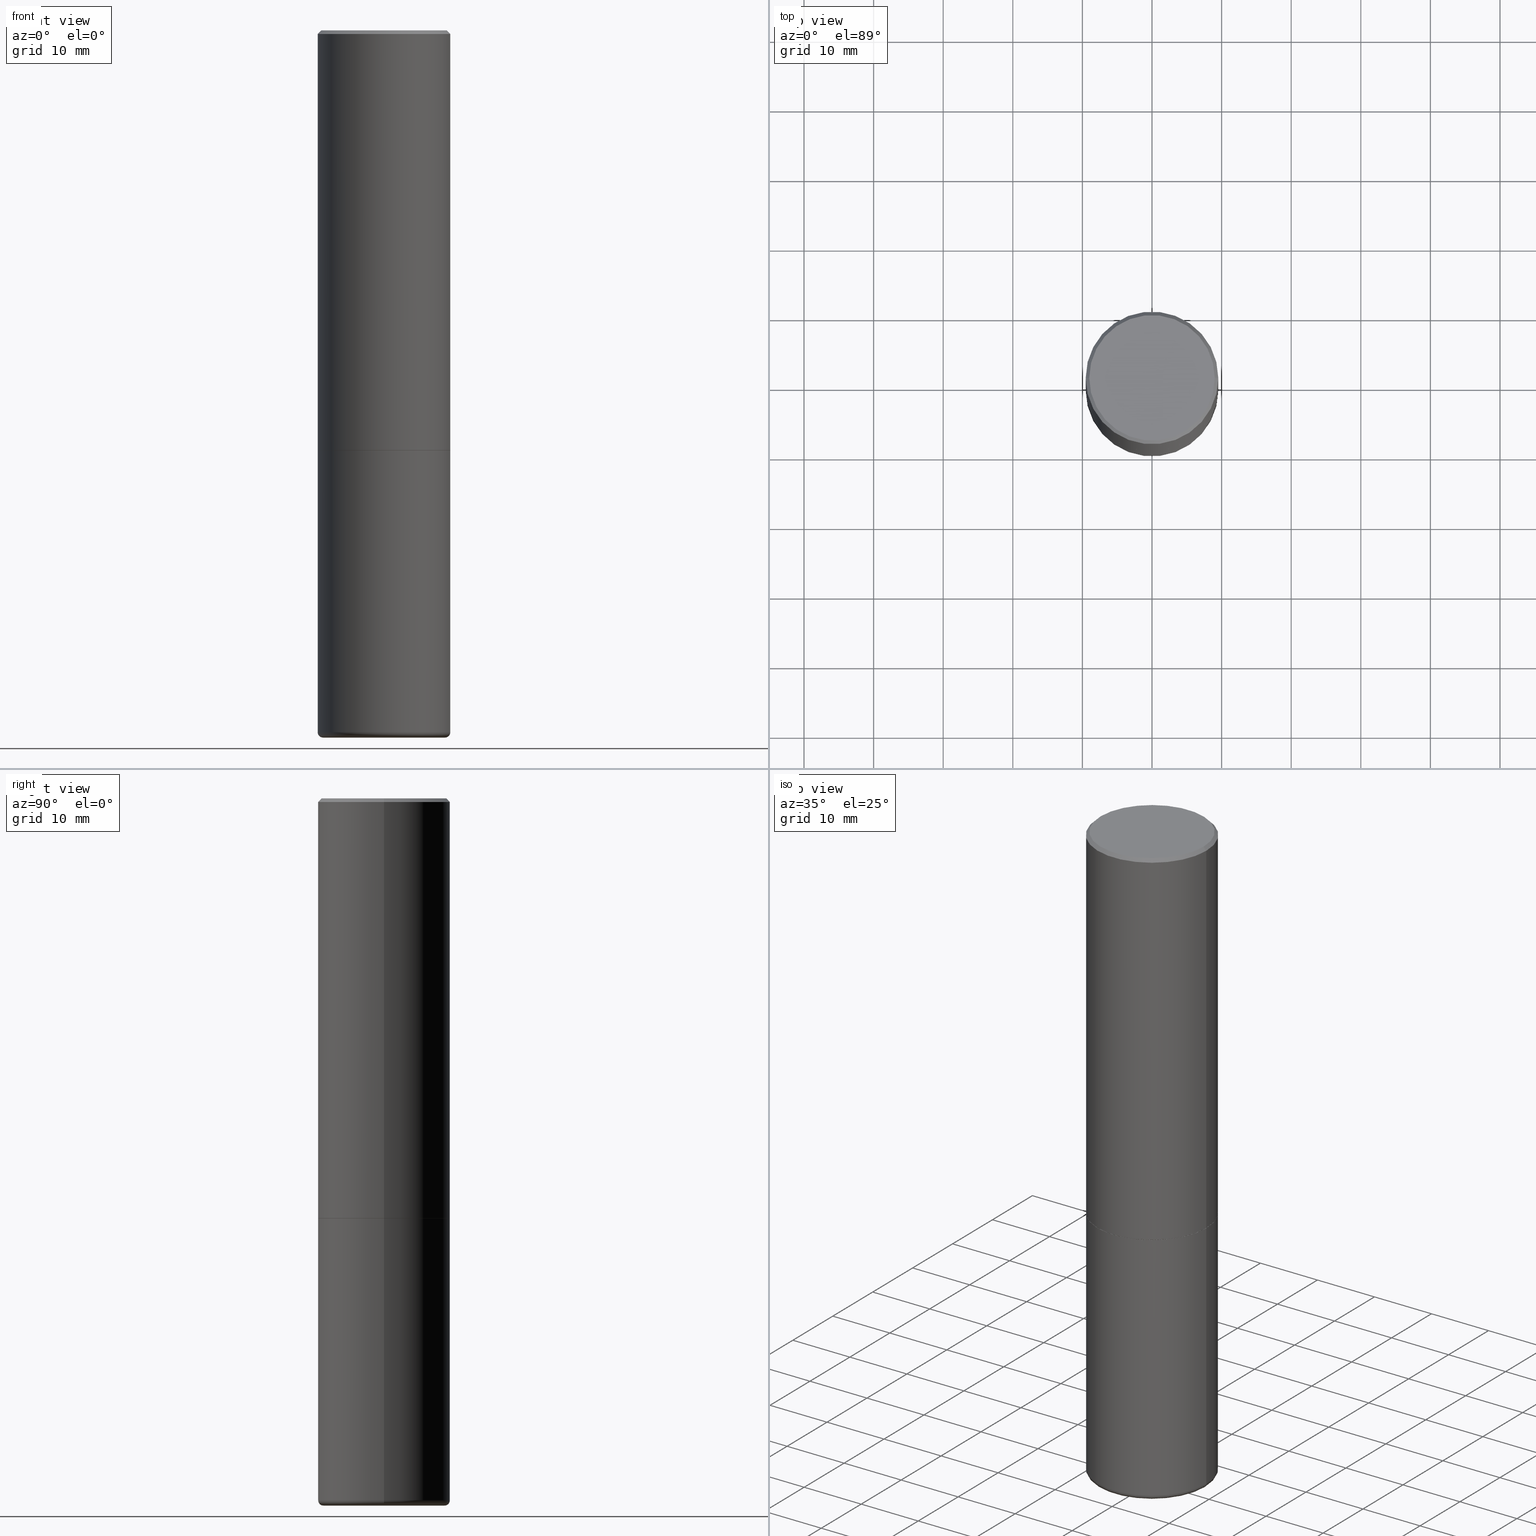
[diagram: canonical four-view strip — front | top / right | iso, engineering-drawing reading convention]
A machine part, canonical four-view strip (front | top / right | iso — engineering-drawing reading convention). The complete STEP part file that produces these views, byte-faithful:
ISO-10303-21;
HEADER;
FILE_DESCRIPTION (( 'STEP AP203' ),
    '1' );
FILE_NAME ('34785.STEP',
    '2022-11-02T20:17:08',
    ( '' ),
    ( '' ),
    'SwSTEP 2.0',
    'SolidWorks 2022',
    '' );
FILE_SCHEMA (( 'CONFIG_CONTROL_DESIGN' ));
ENDSEC;

DATA;
#1 = CARTESIAN_POINT ( 'NONE',  ( 9.781875224740545266E-29, -1.396592535537258075E-14, -3.999999999999999556 ) ) ;
#2 = CALENDAR_DATE ( 2022, 2, 11 ) ;
#3 = EDGE_CURVE ( 'NONE', #373, #296, #477, .T. ) ;
#4 = DIRECTION ( 'NONE',  ( -2.445468806185136597E-29, 3.491481338843145583E-15, 1.000000000000000000 ) ) ;
#5 = DIRECTION ( 'NONE',  ( 1.000000000000000000, -6.982962677686267499E-15, 0.000000000000000000 ) ) ;
#6 = FACE_OUTER_BOUND ( 'NONE', #401, .T. ) ;
#7 = VECTOR ( 'NONE', #224, 39.37007874015748854 ) ;
#8 = CARTESIAN_POINT ( 'NONE',  ( 9.781021626775434250E-29, -1.396470664370530441E-14, -3.999650947105539256 ) ) ;
#9 = ORIENTED_EDGE ( 'NONE', *, *, #72, .T. ) ;
#10 = DIRECTION ( 'NONE',  ( 1.000000000000000000, -6.982962677686265133E-15, 0.000000000000000000 ) ) ;
#11 = ORIENTED_EDGE ( 'NONE', *, *, #45, .F. ) ;
#12 = DIRECTION ( 'NONE',  ( 2.438088387897960049E-29, -3.491481338843145188E-15, -1.000000000000000000 ) ) ;
#13 = CONICAL_SURFACE ( 'NONE', #273, 0.3047407039350492619, 1.535889741755010807 ) ;
#14 = ORIENTED_EDGE ( 'NONE', *, *, #223, .F. ) ;
#15 = AXIS2_PLACEMENT_3D ( 'NONE', #164, #252, #404 ) ;
#16 = CARTESIAN_POINT ( 'NONE',  ( 0.3749999999999992784, -2.642516375941182506E-15, -0.02000000000000018430 ) ) ;
#17 = ORIENTED_EDGE ( 'NONE', *, *, #47, .F. ) ;
#18 = LINE ( 'NONE', #466, #221 ) ;
#19 = ORIENTED_EDGE ( 'NONE', *, *, #393, .T. ) ;
#20 = ADVANCED_BREP_SHAPE_REPRESENTATION ( '34785', ( #176, #343, #487 ), #399 ) ;
#21 =( NAMED_UNIT ( * ) SI_UNIT ( $, .STERADIAN. ) SOLID_ANGLE_UNIT ( ) );
#22 = ORIENTED_EDGE ( 'NONE', *, *, #170, .T. ) ;
#23 = CC_DESIGN_APPROVAL ( #395, ( #130 ) ) ;
#24 = APPROVAL_STATUS ( 'not_yet_approved' ) ;
#25 = CARTESIAN_POINT ( 'NONE',  ( -0.3749999999999993339, -8.412191282553172474E-15, -3.970001142308074993 ) ) ;
#26 = VERTEX_POINT ( 'NONE', #25 ) ;
#27 = CYLINDRICAL_SURFACE ( 'NONE', #308, 0.3749999999999993894 ) ;
#28 = CARTESIAN_POINT ( 'NONE',  ( 0.3749999999999993894, -2.618611004132345678E-15, 1.828566290923473120E-29 ) ) ;
#29 = CONICAL_SURFACE ( 'NONE', #307, 0.3739999999999995550, 0.7853981633974141952 ) ;
#30 = DATE_AND_TIME ( #219, #457 ) ;
#31 = DIRECTION ( 'NONE',  ( -2.445468806185136877E-29, 3.491481338843145188E-15, 1.000000000000000000 ) ) ;
#32 = CARTESIAN_POINT ( 'NONE',  ( 5.807988414689699417E-29, -8.292268179752470118E-15, -2.375000000000000000 ) ) ;
#33 = PERSON_AND_ORGANIZATION_ROLE ( 'creator' ) ;
#34 = CARTESIAN_POINT ( 'NONE',  ( -0.3749999999999993894, 2.664535259100371358E-15, -1.844600658845586515E-29 ) ) ;
#35 = CIRCLE ( 'NONE', #74, 0.3749999999999992784 ) ;
#36 = DIRECTION ( 'NONE',  ( -1.000000000000000000, 6.982962677686267499E-15, 0.000000000000000000 ) ) ;
#37 = APPROVAL_DATE_TIME ( #75, #395 ) ;
#38 = DIRECTION ( 'NONE',  ( -1.000000000000000000, 6.982962677686265133E-15, 0.000000000000000000 ) ) ;
#39 = CC_DESIGN_PERSON_AND_ORGANIZATION_ASSIGNMENT ( #300, #33, ( #130 ) ) ;
#40 = LINE ( 'NONE', #376, #388 ) ;
#41 = DIRECTION ( 'NONE',  ( 1.000000000000000000, -6.982962677686265133E-15, 0.000000000000000000 ) ) ;
#42 = AXIS2_PLACEMENT_3D ( 'NONE', #471, #12, #355 ) ;
#43 = CC_DESIGN_APPROVAL ( #360, ( #73 ) ) ;
#44 = CARTESIAN_POINT ( 'NONE',  ( 0.3549999999999990941, -2.538996582575035132E-15, 8.537024980218368550E-18 ) ) ;
#45 = EDGE_CURVE ( 'NONE', #26, #126, #104, .T. ) ;
#46 = EDGE_LOOP ( 'NONE', ( #158, #288, #123, #467 ) ) ;
#47 = EDGE_CURVE ( 'NONE', #126, #373, #220, .T. ) ;
#48 = DIRECTION ( 'NONE',  ( 1.000000000000000000, -6.982962677686265133E-15, 0.000000000000000000 ) ) ;
#49 = ORIENTED_EDGE ( 'NONE', *, *, #411, .T. ) ;
#50 = CARTESIAN_POINT ( 'NONE',  ( 0.000000000000000000, 0.000000000000000000, 0.000000000000000000 ) ) ;
#51 = AXIS2_PLACEMENT_3D ( 'NONE', #146, #259, #465 ) ;
#52 = EDGE_LOOP ( 'NONE', ( #434, #371, #328, #17 ) ) ;
#53 = CARTESIAN_POINT ( 'NONE',  ( 5.807988414689699417E-29, -8.292268179752470118E-15, -2.375000000000000000 ) ) ;
#54 = ORIENTED_EDGE ( 'NONE', *, *, #318, .T. ) ;
#55 = DIRECTION ( 'NONE',  ( -2.445468806185136597E-29, 3.491481338843145583E-15, 1.000000000000000000 ) ) ;
#56 = ORIENTED_EDGE ( 'NONE', *, *, #230, .F. ) ;
#57 = DIRECTION ( 'NONE',  ( 0.000000000000000000, 0.000000000000000000, 1.000000000000000000 ) ) ;
#58 = DIRECTION ( 'NONE',  ( 2.445468806185136597E-29, -3.491481338843145583E-15, -1.000000000000000000 ) ) ;
#59 = AXIS2_PLACEMENT_3D ( 'NONE', #174, #409, #100 ) ;
#60 = EDGE_CURVE ( 'NONE', #90, #26, #80, .T. ) ;
#61 =( NAMED_UNIT ( * ) PLANE_ANGLE_UNIT ( ) SI_UNIT ( $, .RADIAN. ) );
#62 = CARTESIAN_POINT ( 'NONE',  ( 9.781021626775434250E-29, -1.396470664370530441E-14, -3.999650947105539256 ) ) ;
#63 = PERSON_AND_ORGANIZATION ( #310, #325 ) ;
#64 = CARTESIAN_POINT ( 'NONE',  ( -0.3447382039350492255, -1.135653136718824702E-14, -3.999999999999999556 ) ) ;
#65 = COORDINATED_UNIVERSAL_TIME_OFFSET ( 5, 0, .BEHIND. ) ;
#66 = DIRECTION ( 'NONE',  ( -2.445468806185136597E-29, 3.491481338843145583E-15, 1.000000000000000000 ) ) ;
#67 = AXIS2_PLACEMENT_3D ( 'NONE', #313, #234, #385 ) ;
#68 = CARTESIAN_POINT ( 'NONE',  ( 0.3749999999999993339, -1.647979590768696204E-14, -3.970001142308074993 ) ) ;
#69 = CARTESIAN_POINT ( 'NONE',  ( 0.3447382039350492255, -1.637321936702362776E-14, -3.999999999999999556 ) ) ;
#70 = COORDINATED_UNIVERSAL_TIME_OFFSET ( 5, 0, .BEHIND. ) ;
#71 = LINE ( 'NONE', #144, #266 ) ;
#72 = EDGE_CURVE ( 'NONE', #207, #209, #213, .T. ) ;
#73 = PRODUCT_DEFINITION ( 'UNKNOWN', '', #130, #346 ) ;
#74 = AXIS2_PLACEMENT_3D ( 'NONE', #305, #297, #5 ) ;
#75 = DATE_AND_TIME ( #460, #120 ) ;
#76 = CARTESIAN_POINT ( 'NONE',  ( 5.807988414689699417E-29, -8.292268179752470118E-15, -2.375000000000000000 ) ) ;
#77 = PERSON_AND_ORGANIZATION_ROLE ( 'design_supplier' ) ;
#78 = CARTESIAN_POINT ( 'NONE',  ( 0.000000000000000000, 0.000000000000000000, 0.000000000000000000 ) ) ;
#79 = CARTESIAN_POINT ( 'NONE',  ( -0.3749999999999992784, 2.548781377355481985E-15, -0.02000000000000018430 ) ) ;
#80 = CIRCLE ( 'NONE', #59, 0.02999999999999940561 ) ;
#81 = CARTESIAN_POINT ( 'NONE',  ( 0.000000000000000000, 0.000000000000000000, 0.000000000000000000 ) ) ;
#82 = AXIS2_PLACEMENT_3D ( 'NONE', #78, #463, #426 ) ;
#83 = ORIENTED_EDGE ( 'NONE', *, *, #393, .F. ) ;
#84 = DIRECTION ( 'NONE',  ( 0.9993908270190957621, -6.978169709227539121E-15, -0.03489949670250019204 ) ) ;
#85 = EDGE_LOOP ( 'NONE', ( #330, #260, #117, #11 ) ) ;
#86 = DIRECTION ( 'NONE',  ( 1.000000000000000000, -6.982962677686265133E-15, 4.876231632512000515E-29 ) ) ;
#87 = ORIENTED_EDGE ( 'NONE', *, *, #106, .F. ) ;
#88 = FACE_OUTER_BOUND ( 'NONE', #85, .T. ) ;
#89 = VECTOR ( 'NONE', #353, 39.37007874015748854 ) ;
#90 = VERTEX_POINT ( 'NONE', #64 ) ;
#91 = APPROVAL_PERSON_ORGANIZATION ( #374, #141, #381 ) ;
#92 = ORIENTED_EDGE ( 'NONE', *, *, #427, .T. ) ;
#93 = ORIENTED_EDGE ( 'NONE', *, *, #452, .F. ) ;
#94 = DIRECTION ( 'NONE',  ( -6.982962677686266711E-15, -1.000000000000000000, 3.491481338843145583E-15 ) ) ;
#95 = DIRECTION ( 'NONE',  ( 1.000000000000000000, -6.982962677686269866E-15, 0.000000000000000000 ) ) ;
#96 = CIRCLE ( 'NONE', #486, 0.3447382039350492255 ) ;
#97 = CC_DESIGN_DATE_AND_TIME_ASSIGNMENT ( #183, #263, ( #98 ) ) ;
#98 = SECURITY_CLASSIFICATION ( '', '', #109 ) ;
#99 = APPLICATION_PROTOCOL_DEFINITION ( 'international standard', 'config_control_design', 1994, #152 ) ;
#100 = DIRECTION ( 'NONE',  ( -1.000000000000000000, 7.105427357601001859E-15, 0.000000000000000000 ) ) ;
#101 = APPLICATION_PROTOCOL_DEFINITION ( 'international standard', 'config_control_design', 1994, #423 ) ;
#102 = CARTESIAN_POINT ( 'NONE',  ( 5.807988414689699417E-29, -8.292268179752470118E-15, -2.375000000000000000 ) ) ;
#103 = DIRECTION ( 'NONE',  ( 2.445468806185136597E-29, -3.491481338843145583E-15, -1.000000000000000000 ) ) ;
#104 = CIRCLE ( 'NONE', #357, 0.3749999999999993339 ) ;
#105 = APPROVAL_PERSON_ORGANIZATION ( #334, #395, #443 ) ;
#106 = EDGE_CURVE ( 'NONE', #319, #363, #246, .T. ) ;
#107 = EDGE_CURVE ( 'NONE', #197, #363, #250, .T. ) ;
#108 = DIRECTION ( 'NONE',  ( -2.445468806185136597E-29, 3.491481338843145583E-15, 1.000000000000000000 ) ) ;
#109 = SECURITY_CLASSIFICATION_LEVEL ( 'unclassified' ) ;
#110 = FACE_OUTER_BOUND ( 'NONE', #356, .T. ) ;
#111 = ADVANCED_FACE ( 'NONE', ( #182 ), #365, .F. ) ;
#112 = DIRECTION ( 'NONE',  ( 2.445468806185136597E-29, -3.491481338843145583E-15, -1.000000000000000000 ) ) ;
#113 = CIRCLE ( 'NONE', #283, 0.3749999999999992784 ) ;
#114 = DIRECTION ( 'NONE',  ( 1.000000000000000000, -6.982962677686268288E-15, 0.000000000000000000 ) ) ;
#115 = CARTESIAN_POINT ( 'NONE',  ( 9.781875224740545266E-29, -1.396592535537258075E-14, -3.999999999999999556 ) ) ;
#116 = PLANE ( 'NONE',  #42 ) ;
#117 = ORIENTED_EDGE ( 'NONE', *, *, #482, .T. ) ;
#118 = CIRCLE ( 'NONE', #171, 0.3047407039350492619 ) ;
#119 = CYLINDRICAL_SURFACE ( 'NONE', #323, 0.3749999999999993894 ) ;
#120 = LOCAL_TIME ( 16, 17, 8.000000000000000000, #424 ) ;
#121 = VERTEX_POINT ( 'NONE', #140 ) ;
#122 = DIRECTION ( 'NONE',  ( -2.445468806185136597E-29, 3.491481338843145583E-15, 1.000000000000000000 ) ) ;
#123 = ORIENTED_EDGE ( 'NONE', *, *, #483, .F. ) ;
#124 = ADVANCED_FACE ( 'NONE', ( #335 ), #421, .F. ) ;
#125 = DIRECTION ( 'NONE',  ( -2.445468806185136597E-29, 3.491481338843145583E-15, 1.000000000000000000 ) ) ;
#126 = VERTEX_POINT ( 'NONE', #68 ) ;
#127 = CARTESIAN_POINT ( 'NONE',  ( -0.3047407039350492619, -1.183671368175501508E-14, -3.999650947105539256 ) ) ;
#128 = AXIS2_PLACEMENT_3D ( 'NONE', #196, #279, #41 ) ;
#129 = ORIENTED_EDGE ( 'NONE', *, *, #254, .T. ) ;
#130 = PRODUCT_DEFINITION_FORMATION_WITH_SPECIFIED_SOURCE ( 'ANY', '', #383, .NOT_KNOWN. ) ;
#131 = FACE_OUTER_BOUND ( 'NONE', #459, .T. ) ;
#132 = DIRECTION ( 'NONE',  ( -2.445468806185136597E-29, 3.491481338843145583E-15, 1.000000000000000000 ) ) ;
#133 = CC_DESIGN_PERSON_AND_ORGANIZATION_ASSIGNMENT ( #402, #139, ( #73 ) ) ;
#134 = EDGE_LOOP ( 'NONE', ( #447, #280, #145, #253 ) ) ;
#135 = PERSON_AND_ORGANIZATION_ROLE ( 'design_owner' ) ;
#136 = DIRECTION ( 'NONE',  ( -2.445468806185136877E-29, 3.491481338843145188E-15, 1.000000000000000000 ) ) ;
#137 = VECTOR ( 'NONE', #410, 39.37007874015748854 ) ;
#138 = AXIS2_PLACEMENT_3D ( 'NONE', #8, #400, #10 ) ;
#139 = PERSON_AND_ORGANIZATION_ROLE ( 'creator' ) ;
#140 = CARTESIAN_POINT ( 'NONE',  ( 9.753116872605322365E-29, -1.393024421333557425E-14, -3.989009167228670716 ) ) ;
#141 = APPROVAL ( #190, 'UNSPECIFIED' ) ;
#142 = APPROVAL_STATUS ( 'not_yet_approved' ) ;
#143 = ORIENTED_EDGE ( 'NONE', *, *, #223, .T. ) ;
#144 = CARTESIAN_POINT ( 'NONE',  ( -0.3739999999999995550, -5.634838348009698584E-15, -2.375000000000000000 ) ) ;
#145 = ORIENTED_EDGE ( 'NONE', *, *, #178, .F. ) ;
#146 = CARTESIAN_POINT ( 'NONE',  ( 9.781875224740545266E-29, -1.396592535537258075E-14, -3.999999999999999556 ) ) ;
#147 = UNCERTAINTY_MEASURE_WITH_UNIT (LENGTH_MEASURE( 1.000000000000000082E-05 ), #175, 'distance_accuracy_value', 'NONE');
#148 = DIRECTION ( 'NONE',  ( -0.7071067811865232589, 7.493145998870265808E-15, 0.7071067811865715536 ) ) ;
#149 = COORDINATED_UNIVERSAL_TIME_OFFSET ( 5, 0, .BEHIND. ) ;
#150 = CARTESIAN_POINT ( 'NONE',  ( 0.3749999999999995559, -1.090738770254597397E-14, -2.373999999999999666 ) ) ;
#151 = VECTOR ( 'NONE', #342, 39.37007874015748143 ) ;
#152 = APPLICATION_CONTEXT ( 'configuration controlled 3d designs of mechanical parts and assemblies' ) ;
#153 = DIRECTION ( 'NONE',  ( 2.445468806185136597E-29, -3.491481338843145583E-15, -1.000000000000000000 ) ) ;
#154 = EDGE_CURVE ( 'NONE', #319, #354, #332, .T. ) ;
#155 = CARTESIAN_POINT ( 'NONE',  ( 9.781021626775434250E-29, -1.396470664370530441E-14, -3.999650947105539256 ) ) ;
#156 = ORIENTED_EDGE ( 'NONE', *, *, #254, .F. ) ;
#157 = FACE_OUTER_BOUND ( 'NONE', #405, .T. ) ;
#158 = ORIENTED_EDGE ( 'NONE', *, *, #452, .T. ) ;
#159 = ADVANCED_FACE ( 'NONE', ( #131 ), #372, .T. ) ;
#160 = AXIS2_PLACEMENT_3D ( 'NONE', #264, #232, #416 ) ;
#161 = CARTESIAN_POINT ( 'NONE',  ( -0.3749999999999995559, -8.412191282553170896E-15, -2.375000000000000000 ) ) ;
#162 = AXIS2_PLACEMENT_3D ( 'NONE', #480, #94, #408 ) ;
#163 = ORIENTED_EDGE ( 'NONE', *, *, #377, .T. ) ;
#164 = CARTESIAN_POINT ( 'NONE',  ( 9.708513954033757613E-29, -1.386118490355461518E-14, -3.970001142308074993 ) ) ;
#165 = ORIENTED_EDGE ( 'NONE', *, *, #45, .T. ) ;
#166 = DIRECTION ( 'NONE',  ( -2.445468806185136597E-29, 3.491481338843145583E-15, 1.000000000000000000 ) ) ;
#167 = VERTEX_POINT ( 'NONE', #446 ) ;
#168 = CARTESIAN_POINT ( 'NONE',  ( 5.807988414689699417E-29, -8.292268179752470118E-15, -2.375000000000000000 ) ) ;
#169 = VECTOR ( 'NONE', #136, 39.37007874015748143 ) ;
#170 = EDGE_CURVE ( 'NONE', #209, #90, #96, .T. ) ;
#171 = AXIS2_PLACEMENT_3D ( 'NONE', #155, #125, #48 ) ;
#172 = DIRECTION ( 'NONE',  ( -2.445468806185136597E-29, 3.491481338843145583E-15, 1.000000000000000000 ) ) ;
#173 = DIRECTION ( 'NONE',  ( 1.000000000000000000, -6.982962677686268288E-15, 0.000000000000000000 ) ) ;
#174 = CARTESIAN_POINT ( 'NONE',  ( -0.3450000000000003064, -1.140981246518226815E-14, -3.970001142308074993 ) ) ;
#175 =( CONVERSION_BASED_UNIT ( 'INCH', #210 ) LENGTH_UNIT ( ) NAMED_UNIT ( #247 ) );
#176 = MANIFOLD_SOLID_BREP ( 'Body-Move/Copy2[1]', #440 ) ;
#177 = ORIENTED_EDGE ( 'NONE', *, *, #72, .F. ) ;
#178 = EDGE_CURVE ( 'NONE', #451, #363, #35, .T. ) ;
#179 = CARTESIAN_POINT ( 'NONE',  ( 9.708513954033757613E-29, -1.386118490355461518E-14, -3.970001142308074993 ) ) ;
#180 = CIRCLE ( 'NONE', #441, 0.3739999999999995550 ) ;
#181 = DATE_TIME_ROLE ( 'creation_date' ) ;
#182 = FACE_OUTER_BOUND ( 'NONE', #244, .T. ) ;
#183 = DATE_AND_TIME ( #2, #407 ) ;
#184 = FACE_OUTER_BOUND ( 'NONE', #46, .T. ) ;
#185 = CARTESIAN_POINT ( 'NONE',  ( 0.3739999999999995550, -1.090389622120713096E-14, -2.375000000000000000 ) ) ;
#186 = CIRCLE ( 'NONE', #160, 0.3749999999999993339 ) ;
#187 = APPROVAL_DATE_TIME ( #344, #141 ) ;
#188 = ADVANCED_FACE ( 'NONE', ( #490 ), #430, .F. ) ;
#189 = CARTESIAN_POINT ( 'NONE',  ( 4.890937612370317825E-31, -6.982962677686355704E-17, -0.02000000000000018430 ) ) ;
#190 = APPROVAL_STATUS ( 'not_yet_approved' ) ;
#191 = CARTESIAN_POINT ( 'NONE',  ( 5.807988414689699417E-29, -8.292268179752470118E-15, -2.375000000000000000 ) ) ;
#192 = CARTESIAN_POINT ( 'NONE',  ( 4.890937612370317825E-31, -6.982962677686355704E-17, -0.02000000000000018430 ) ) ;
#193 = ADVANCED_FACE ( 'NONE', ( #6 ), #13, .F. ) ;
#194 = VECTOR ( 'NONE', #436, 39.37007874015748143 ) ;
#195 = DIRECTION ( 'NONE',  ( 1.000000000000000000, -6.982962677686266711E-15, 4.876176775795936353E-29 ) ) ;
#196 = CARTESIAN_POINT ( 'NONE',  ( 5.805542945883513814E-29, -8.288776698413627111E-15, -2.373999999999999666 ) ) ;
#197 = VERTEX_POINT ( 'NONE', #309 ) ;
#198 = EDGE_CURVE ( 'NONE', #167, #197, #71, .T. ) ;
#199 = CC_DESIGN_PERSON_AND_ORGANIZATION_ASSIGNMENT ( #261, #231, ( #98 ) ) ;
#200 = DIRECTION ( 'NONE',  ( -2.445468806185136597E-29, 3.491481338843145583E-15, 1.000000000000000000 ) ) ;
#201 = ORIENTED_EDGE ( 'NONE', *, *, #107, .F. ) ;
#202 = AXIS2_PLACEMENT_3D ( 'NONE', #364, #172, #326 ) ;
#203 = DIRECTION ( 'NONE',  ( -2.445468806185136597E-29, 3.491481338843145583E-15, 1.000000000000000000 ) ) ;
#204 = CIRCLE ( 'NONE', #235, 0.3749999999999995559 ) ;
#205 = VERTEX_POINT ( 'NONE', #150 ) ;
#206 = LINE ( 'NONE', #428, #89 ) ;
#207 = VERTEX_POINT ( 'NONE', #461 ) ;
#208 =( LENGTH_UNIT ( ) NAMED_UNIT ( * ) SI_UNIT ( $, .METRE. ) );
#209 = VERTEX_POINT ( 'NONE', #69 ) ;
#210 = LENGTH_MEASURE_WITH_UNIT ( LENGTH_MEASURE( 0.02539999999999999897 ), #208 );
#211 = CONICAL_SURFACE ( 'NONE', #274, 0.3739999999999995550, 0.7853981633974141952 ) ;
#212 = ORIENTED_EDGE ( 'NONE', *, *, #178, .T. ) ;
#213 = LINE ( 'NONE', #479, #137 ) ;
#214 = EDGE_CURVE ( 'NONE', #90, #209, #380, .T. ) ;
#215 = EDGE_CURVE ( 'NONE', #476, #205, #379, .T. ) ;
#216 = APPROVAL_ROLE ( '' ) ;
#217 = ADVANCED_FACE ( 'NONE', ( #340 ), #269, .T. ) ;
#218 = EDGE_LOOP ( 'NONE', ( #352, #314 ) ) ;
#219 = CALENDAR_DATE ( 2022, 2, 11 ) ;
#220 = LINE ( 'NONE', #28, #169 ) ;
#221 = VECTOR ( 'NONE', #238, 39.37007874015748143 ) ;
#222 = FACE_OUTER_BOUND ( 'NONE', #239, .T. ) ;
#223 = EDGE_CURVE ( 'NONE', #121, #312, #40, .T. ) ;
#224 = DIRECTION ( 'NONE',  ( 0.7071067811865232589, -2.468850131082003836E-15, 0.7071067811865715536 ) ) ;
#225 = ORIENTED_EDGE ( 'NONE', *, *, #278, .F. ) ;
#226 = ADVANCED_FACE ( 'NONE', ( #110 ), #298, .T. ) ;
#227 = DIRECTION ( 'NONE',  ( -2.438088387897960049E-29, 3.491481338843145188E-15, 1.000000000000000000 ) ) ;
#228 = AXIS2_PLACEMENT_3D ( 'NONE', #50, #203, #359 ) ;
#229 = DIRECTION ( 'NONE',  ( 1.000000000000000000, -6.982962677686268288E-15, 0.000000000000000000 ) ) ;
#230 = EDGE_CURVE ( 'NONE', #126, #26, #186, .T. ) ;
#231 = PERSON_AND_ORGANIZATION_ROLE ( 'classification_officer' ) ;
#232 = DIRECTION ( 'NONE',  ( -2.445468806185136597E-29, 3.491481338843145583E-15, 1.000000000000000000 ) ) ;
#233 = EDGE_CURVE ( 'NONE', #26, #296, #418, .T. ) ;
#234 = DIRECTION ( 'NONE',  ( 2.445468806185136597E-29, -3.491481338843145583E-15, -1.000000000000000000 ) ) ;
#235 = AXIS2_PLACEMENT_3D ( 'NONE', #248, #132, #286 ) ;
#236 = DIRECTION ( 'NONE',  ( 1.000000000000000000, -6.982962677686268288E-15, 0.000000000000000000 ) ) ;
#237 = ORIENTED_EDGE ( 'NONE', *, *, #482, .F. ) ;
#238 = DIRECTION ( 'NONE',  ( -2.445468806185136877E-29, 3.491481338843145188E-15, 1.000000000000000000 ) ) ;
#239 = EDGE_LOOP ( 'NONE', ( #93, #225 ) ) ;
#240 = FACE_OUTER_BOUND ( 'NONE', #52, .T. ) ;
#241 = ORIENTED_EDGE ( 'NONE', *, *, #233, .F. ) ;
#242 = AXIS2_PLACEMENT_3D ( 'NONE', #32, #227, #375 ) ;
#243 = ORIENTED_EDGE ( 'NONE', *, *, #413, .F. ) ;
#244 = EDGE_LOOP ( 'NONE', ( #243, #143, #316 ) ) ;
#245 = PERSON_AND_ORGANIZATION ( #310, #325 ) ;
#246 = LINE ( 'NONE', #256, #339 ) ;
#247 = DIMENSIONAL_EXPONENTS ( 1.000000000000000000, 0.000000000000000000, 0.000000000000000000, 0.000000000000000000, 0.000000000000000000, 0.000000000000000000, 0.000000000000000000 ) ;
#248 = CARTESIAN_POINT ( 'NONE',  ( 5.805542945883513814E-29, -8.288776698413627111E-15, -2.373999999999999666 ) ) ;
#249 = AXIS2_PLACEMENT_3D ( 'NONE', #62, #58, #488 ) ;
#250 = LINE ( 'NONE', #454, #290 ) ;
#251 = ADVANCED_FACE ( 'NONE', ( #222 ), #384, .F. ) ;
#252 = DIRECTION ( 'NONE',  ( -2.445468806185136597E-29, 3.491481338843145583E-15, 1.000000000000000000 ) ) ;
#253 = ORIENTED_EDGE ( 'NONE', *, *, #318, .F. ) ;
#254 = EDGE_CURVE ( 'NONE', #363, #451, #113, .T. ) ;
#255 = COORDINATED_UNIVERSAL_TIME_OFFSET ( 5, 0, .BEHIND. ) ;
#256 = CARTESIAN_POINT ( 'NONE',  ( -0.3749999999999992784, 2.548781377355481985E-15, -0.02000000000000018430 ) ) ;
#257 = ORIENTED_EDGE ( 'NONE', *, *, #170, .F. ) ;
#258 = AXIS2_PLACEMENT_3D ( 'NONE', #268, #458, #338 ) ;
#259 = DIRECTION ( 'NONE',  ( -2.445468806185136597E-29, 3.491481338843145583E-15, 1.000000000000000000 ) ) ;
#260 = ORIENTED_EDGE ( 'NONE', *, *, #214, .T. ) ;
#261 = PERSON_AND_ORGANIZATION ( #310, #325 ) ;
#262 = DIRECTION ( 'NONE',  ( 2.445468806185136597E-29, -3.491481338843145583E-15, -1.000000000000000000 ) ) ;
#263 = DATE_TIME_ROLE ( 'classification_date' ) ;
#264 = CARTESIAN_POINT ( 'NONE',  ( 9.708513954033757613E-29, -1.386118490355461518E-14, -3.970001142308074993 ) ) ;
#265 = ADVANCED_FACE ( 'NONE', ( #184 ), #29, .T. ) ;
#266 = VECTOR ( 'NONE', #148, 39.37007874015748854 ) ;
#267 = ADVANCED_FACE ( 'NONE', ( #382 ), #211, .T. ) ;
#268 = CARTESIAN_POINT ( 'NONE',  ( 9.708513954033757613E-29, -1.386118490355461518E-14, -3.970001142308074993 ) ) ;
#269 = CYLINDRICAL_SURFACE ( 'NONE', #82, 0.3749999999999993894 ) ;
#270 = CARTESIAN_POINT ( 'NONE',  ( 5.807988414689699417E-29, -8.292268179752470118E-15, -2.375000000000000000 ) ) ;
#271 = ORIENTED_EDGE ( 'NONE', *, *, #215, .T. ) ;
#272 = AXIS2_PLACEMENT_3D ( 'NONE', #102, #66, #489 ) ;
#273 = AXIS2_PLACEMENT_3D ( 'NONE', #425, #153, #38 ) ;
#274 = AXIS2_PLACEMENT_3D ( 'NONE', #191, #345, #114 ) ;
#275 = LOCAL_TIME ( 16, 17, 8.000000000000000000, #255 ) ;
#276 = CARTESIAN_POINT ( 'NONE',  ( 0.3749999999999992784, -2.642516375941182506E-15, -0.02000000000000018430 ) ) ;
#277 = ORIENTED_EDGE ( 'NONE', *, *, #306, .T. ) ;
#278 = EDGE_CURVE ( 'NONE', #167, #476, #180, .T. ) ;
#279 = DIRECTION ( 'NONE',  ( -2.445468806185136597E-29, 3.491481338843145583E-15, 1.000000000000000000 ) ) ;
#280 = ORIENTED_EDGE ( 'NONE', *, *, #107, .T. ) ;
#281 = DIRECTION ( 'NONE',  ( 1.000000000000000000, -6.982962677686265133E-15, 0.000000000000000000 ) ) ;
#282 = ORIENTED_EDGE ( 'NONE', *, *, #154, .F. ) ;
#283 = AXIS2_PLACEMENT_3D ( 'NONE', #189, #4, #420 ) ;
#284 = CARTESIAN_POINT ( 'NONE',  ( -0.3549999999999990941, 2.513866563967049547E-15, 8.537024980183364388E-18 ) ) ;
#285 = ORIENTED_EDGE ( 'NONE', *, *, #278, .T. ) ;
#286 = DIRECTION ( 'NONE',  ( 1.000000000000000000, -6.982962677686265133E-15, 0.000000000000000000 ) ) ;
#287 = ADVANCED_FACE ( 'NONE', ( #473 ), #390, .F. ) ;
#288 = ORIENTED_EDGE ( 'NONE', *, *, #198, .T. ) ;
#289 = CC_DESIGN_PERSON_AND_ORGANIZATION_ASSIGNMENT ( #245, #135, ( #383 ) ) ;
#290 = VECTOR ( 'NONE', #31, 39.37007874015748143 ) ;
#291 = AXIS2_PLACEMENT_3D ( 'NONE', #475, #351, #362 ) ;
#292 = APPROVAL_PERSON_ORGANIZATION ( #63, #360, #216 ) ;
#293 = ORIENTED_EDGE ( 'NONE', *, *, #303, .T. ) ;
#294 = CARTESIAN_POINT ( 'NONE',  ( 0.000000000000000000, 0.000000000000000000, 0.000000000000000000 ) ) ;
#295 = EDGE_LOOP ( 'NONE', ( #201, #163, #54, #156 ) ) ;
#296 = VERTEX_POINT ( 'NONE', #161 ) ;
#297 = DIRECTION ( 'NONE',  ( -2.445468806185136597E-29, 3.491481338843145583E-15, 1.000000000000000000 ) ) ;
#298 = CONICAL_SURFACE ( 'NONE', #398, 0.3749999999999992784, 0.7853981633974483900 ) ;
#299 = CC_DESIGN_SECURITY_CLASSIFICATION ( #98, ( #130 ) ) ;
#300 = PERSON_AND_ORGANIZATION ( #310, #325 ) ;
#301 = DIRECTION ( 'NONE',  ( -1.000000000000000000, 6.982962677686268288E-15, 0.000000000000000000 ) ) ;
#302 = DIRECTION ( 'NONE',  ( -0.9993908270190957621, 6.856857904024558837E-15, -0.03489949670250019204 ) ) ;
#303 = EDGE_CURVE ( 'NONE', #312, #207, #358, .T. ) ;
#304 = PRODUCT_RELATED_PRODUCT_CATEGORY ( 'detail', '', ( #383 ) ) ;
#305 = CARTESIAN_POINT ( 'NONE',  ( 4.890937612370317825E-31, -6.982962677686355704E-17, -0.02000000000000018430 ) ) ;
#306 = EDGE_CURVE ( 'NONE', #312, #90, #206, .T. ) ;
#307 = AXIS2_PLACEMENT_3D ( 'NONE', #76, #464, #229 ) ;
#308 = AXIS2_PLACEMENT_3D ( 'NONE', #294, #324, #329 ) ;
#309 = CARTESIAN_POINT ( 'NONE',  ( -0.3749999999999995559, -1.514767903494871085E-15, -2.373999999999999666 ) ) ;
#310 = PERSON ( 'UNSPECIFIED', 'UNSPECIFIED', 'UNSPECIFIED', ('UNSPECIFIED'), ('UNSPECIFIED'), ('UNSPECIFIED') ) ;
#311 = LINE ( 'NONE', #276, #194 ) ;
#312 = VERTEX_POINT ( 'NONE', #127 ) ;
#313 = CARTESIAN_POINT ( 'NONE',  ( 4.890937612370317825E-31, -6.982962677686355704E-17, -0.02000000000000018430 ) ) ;
#314 = ORIENTED_EDGE ( 'NONE', *, *, #320, .T. ) ;
#315 = LINE ( 'NONE', #432, #456 ) ;
#316 = ORIENTED_EDGE ( 'NONE', *, *, #411, .F. ) ;
#317 = CARTESIAN_POINT ( 'NONE',  ( 0.3749999999999995559, -1.091087918388481698E-14, -2.375000000000000000 ) ) ;
#318 = EDGE_CURVE ( 'NONE', #205, #451, #18, .T. ) ;
#319 = VERTEX_POINT ( 'NONE', #284 ) ;
#320 = EDGE_CURVE ( 'NONE', #296, #373, #478, .T. ) ;
#321 = DIRECTION ( 'NONE',  ( -2.445468806185136597E-29, 3.491481338843145583E-15, 1.000000000000000000 ) ) ;
#322 = ORIENTED_EDGE ( 'NONE', *, *, #47, .T. ) ;
#323 = AXIS2_PLACEMENT_3D ( 'NONE', #81, #122, #195 ) ;
#324 = DIRECTION ( 'NONE',  ( -2.445468806185136597E-29, 3.491481338843145583E-15, 1.000000000000000000 ) ) ;
#325 = ORGANIZATION ( 'UNSPECIFIED', 'UNSPECIFIED', '' ) ;
#326 = DIRECTION ( 'NONE',  ( 1.000000000000000000, -6.982962677686265133E-15, 4.876231632512000515E-29 ) ) ;
#327 = FACE_OUTER_BOUND ( 'NONE', #295, .T. ) ;
#328 = ORIENTED_EDGE ( 'NONE', *, *, #3, .F. ) ;
#329 = DIRECTION ( 'NONE',  ( 1.000000000000000000, -6.982962677686266711E-15, 4.876176775795936353E-29 ) ) ;
#330 = ORIENTED_EDGE ( 'NONE', *, *, #60, .F. ) ;
#331 = APPROVAL_DATE_TIME ( #412, #360 ) ;
#332 = CIRCLE ( 'NONE', #202, 0.3549999999999990941 ) ;
#333 = DIRECTION ( 'NONE',  ( -0.7071067811865475727, 2.468850131082257455E-15, -0.7071067811865474617 ) ) ;
#334 = PERSON_AND_ORGANIZATION ( #310, #325 ) ;
#335 = FACE_OUTER_BOUND ( 'NONE', #394, .T. ) ;
#336 = ADVANCED_FACE ( 'NONE', ( #438 ), #116, .F. ) ;
#337 = CALENDAR_DATE ( 2022, 2, 11 ) ;
#338 = DIRECTION ( 'NONE',  ( 1.000000000000000000, -6.982962677686263555E-15, 4.883557194083111219E-29 ) ) ;
#339 = VECTOR ( 'NONE', #333, 39.37007874015748143 ) ;
#340 = FACE_OUTER_BOUND ( 'NONE', #472, .T. ) ;
#341 = CONICAL_SURFACE ( 'NONE', #67, 0.3749999999999992784, 0.7853981633974483900 ) ;
#342 = DIRECTION ( 'NONE',  ( -2.445468806185136877E-29, 3.491481338843145188E-15, 1.000000000000000000 ) ) ;
#343 = MANIFOLD_SOLID_BREP ( 'Body-Move/Copy2[2]', #386 ) ;
#344 = DATE_AND_TIME ( #337, #422 ) ;
#345 = DIRECTION ( 'NONE',  ( -2.445468806185136597E-29, 3.491481338843145583E-15, 1.000000000000000000 ) ) ;
#346 = DESIGN_CONTEXT ( 'detailed design', #152, 'design' ) ;
#347 = SHAPE_DEFINITION_REPRESENTATION ( #419, #20 ) ;
#348 = DIRECTION ( 'NONE',  ( 1.000000000000000000, -6.982962677686268288E-15, 0.000000000000000000 ) ) ;
#349 = CIRCLE ( 'NONE', #128, 0.3749999999999995559 ) ;
#350 = CC_DESIGN_APPROVAL ( #141, ( #98 ) ) ;
#351 = DIRECTION ( 'NONE',  ( 2.438088387897960049E-29, -3.491481338843145188E-15, -1.000000000000000000 ) ) ;
#352 = ORIENTED_EDGE ( 'NONE', *, *, #3, .T. ) ;
#353 = DIRECTION ( 'NONE',  ( -0.9999619230641714207, 6.952228252019235511E-15, -0.008726535498355246501 ) ) ;
#354 = VERTEX_POINT ( 'NONE', #44 ) ;
#355 = DIRECTION ( 'NONE',  ( -1.000000000000000000, 6.982962677686265922E-15, -4.876176775795935793E-29 ) ) ;
#356 = EDGE_LOOP ( 'NONE', ( #83, #282, #361, #129 ) ) ;
#357 = AXIS2_PLACEMENT_3D ( 'NONE', #179, #481, #95 ) ;
#358 = CIRCLE ( 'NONE', #138, 0.3047407039350492619 ) ;
#359 = DIRECTION ( 'NONE',  ( 1.000000000000000000, -6.982962677686266711E-15, 4.876176775795936353E-29 ) ) ;
#360 = APPROVAL ( #24, 'UNSPECIFIED' ) ;
#361 = ORIENTED_EDGE ( 'NONE', *, *, #106, .T. ) ;
#362 = DIRECTION ( 'NONE',  ( -1.000000000000000000, 6.982962677686265922E-15, -4.876176775795935793E-29 ) ) ;
#363 = VERTEX_POINT ( 'NONE', #79 ) ;
#364 = CARTESIAN_POINT ( 'NONE',  ( -2.087702828670439639E-46, 2.980686340760894400E-32, 8.537024980200822558E-18 ) ) ;
#365 = CONICAL_SURFACE ( 'NONE', #249, 0.3047407039350492619, 1.535889741755010807 ) ;
#366 = MECHANICAL_CONTEXT ( 'NONE', #423, 'mechanical' ) ;
#367 = EDGE_LOOP ( 'NONE', ( #293, #9, #397, #444 ) ) ;
#368 = ADVANCED_FACE ( 'NONE', ( #157 ), #341, .T. ) ;
#369 = ORIENTED_EDGE ( 'NONE', *, *, #320, .F. ) ;
#370 = CALENDAR_DATE ( 2022, 2, 11 ) ;
#371 = ORIENTED_EDGE ( 'NONE', *, *, #233, .T. ) ;
#372 = TOROIDAL_SURFACE ( 'NONE', #258, 0.3450000000000003064, 0.02999999999999943337 ) ;
#373 = VERTEX_POINT ( 'NONE', #317 ) ;
#374 = PERSON_AND_ORGANIZATION ( #310, #325 ) ;
#375 = DIRECTION ( 'NONE',  ( 1.000000000000000000, -6.982962677686265922E-15, 4.876176775795935793E-29 ) ) ;
#376 = CARTESIAN_POINT ( 'NONE',  ( -0.3047407039350492619, -1.183671368175501508E-14, -3.999650947105539256 ) ) ;
#377 = EDGE_CURVE ( 'NONE', #197, #205, #349, .T. ) ;
#378 = CC_DESIGN_DATE_AND_TIME_ASSIGNMENT ( #30, #181, ( #73 ) ) ;
#379 = LINE ( 'NONE', #185, #7 ) ;
#380 = CIRCLE ( 'NONE', #51, 0.3447382039350492255 ) ;
#381 = APPROVAL_ROLE ( '' ) ;
#382 = FACE_OUTER_BOUND ( 'NONE', #484, .T. ) ;
#383 = PRODUCT ( '34785', '34785', '', ( #366 ) ) ;
#384 = PLANE ( 'NONE',  #242 ) ;
#385 = DIRECTION ( 'NONE',  ( -1.000000000000000000, 6.982962677686267499E-15, 0.000000000000000000 ) ) ;
#386 = CLOSED_SHELL ( 'NONE', ( #265, #387, #368, #226, #462, #267, #251, #336 ) ) ;
#387 = ADVANCED_FACE ( 'NONE', ( #468 ), #119, .T. ) ;
#388 = VECTOR ( 'NONE', #302, 39.37007874015748143 ) ;
#389 = CIRCLE ( 'NONE', #431, 0.3739999999999995550 ) ;
#390 = PLANE ( 'NONE',  #291 ) ;
#391 = ORIENTED_EDGE ( 'NONE', *, *, #60, .T. ) ;
#392 = CARTESIAN_POINT ( 'NONE',  ( -2.087702828670439639E-46, 2.980686340760894400E-32, 8.537024980200822558E-18 ) ) ;
#393 = EDGE_CURVE ( 'NONE', #354, #451, #311, .T. ) ;
#394 = EDGE_LOOP ( 'NONE', ( #177, #49, #277, #257 ) ) ;
#395 = APPROVAL ( #142, 'UNSPECIFIED' ) ;
#396 = CYLINDRICAL_SURFACE ( 'NONE', #228, 0.3749999999999993894 ) ;
#397 = ORIENTED_EDGE ( 'NONE', *, *, #214, .F. ) ;
#398 = AXIS2_PLACEMENT_3D ( 'NONE', #192, #112, #36 ) ;
#399 =( GEOMETRIC_REPRESENTATION_CONTEXT ( 3 ) GLOBAL_UNCERTAINTY_ASSIGNED_CONTEXT ( ( #147 ) ) GLOBAL_UNIT_ASSIGNED_CONTEXT ( ( #175, #61, #21 ) ) REPRESENTATION_CONTEXT ( 'NONE', 'WORKASPACE' ) );
#400 = DIRECTION ( 'NONE',  ( -2.445468806185136597E-29, 3.491481338843145583E-15, 1.000000000000000000 ) ) ;
#401 = EDGE_LOOP ( 'NONE', ( #14, #429, #470 ) ) ;
#402 = PERSON_AND_ORGANIZATION ( #310, #325 ) ;
#403 = ORIENTED_EDGE ( 'NONE', *, *, #198, .F. ) ;
#404 = DIRECTION ( 'NONE',  ( 1.000000000000000000, -6.982962677686263555E-15, 4.883557194083111219E-29 ) ) ;
#405 = EDGE_LOOP ( 'NONE', ( #439, #19, #212, #87 ) ) ;
#406 = CIRCLE ( 'NONE', #469, 0.3549999999999990941 ) ;
#407 = LOCAL_TIME ( 16, 17, 8.000000000000000000, #70 ) ;
#408 = DIRECTION ( 'NONE',  ( 1.000000000000000000, -6.982962677686276966E-15, 0.000000000000000000 ) ) ;
#409 = DIRECTION ( 'NONE',  ( 7.105427357601001859E-15, 1.000000000000000000, -3.491481338843145583E-15 ) ) ;
#410 = DIRECTION ( 'NONE',  ( 0.9999619230641714207, -6.890705306874777996E-15, -0.008726535498355246501 ) ) ;
#411 = EDGE_CURVE ( 'NONE', #207, #312, #118, .T. ) ;
#412 = DATE_AND_TIME ( #370, #275 ) ;
#413 = EDGE_CURVE ( 'NONE', #121, #207, #315, .T. ) ;
#414 = ORIENTED_EDGE ( 'NONE', *, *, #377, .F. ) ;
#415 = DIRECTION ( 'NONE',  ( -1.000000000000000000, 6.982962677686268288E-15, 0.000000000000000000 ) ) ;
#416 = DIRECTION ( 'NONE',  ( 1.000000000000000000, -6.982962677686269866E-15, 0.000000000000000000 ) ) ;
#417 = PERSON_AND_ORGANIZATION ( #310, #325 ) ;
#418 = LINE ( 'NONE', #34, #151 ) ;
#419 = PRODUCT_DEFINITION_SHAPE ( 'NONE', 'NONE',  #73 ) ;
#420 = DIRECTION ( 'NONE',  ( 1.000000000000000000, -6.982962677686267499E-15, 0.000000000000000000 ) ) ;
#421 = CONICAL_SURFACE ( 'NONE', #492, 0.3447382039350492255, 1.562069680534943661 ) ;
#422 = LOCAL_TIME ( 16, 17, 8.000000000000000000, #149 ) ;
#423 = APPLICATION_CONTEXT ( 'configuration controlled 3d designs of mechanical parts and assemblies' ) ;
#424 = COORDINATED_UNIVERSAL_TIME_OFFSET ( 5, 0, .BEHIND. ) ;
#425 = CARTESIAN_POINT ( 'NONE',  ( 9.781021626775434250E-29, -1.396470664370530441E-14, -3.999650947105539256 ) ) ;
#426 = DIRECTION ( 'NONE',  ( 1.000000000000000000, -6.982962677686266711E-15, 4.876176775795936353E-29 ) ) ;
#427 = EDGE_CURVE ( 'NONE', #354, #319, #406, .T. ) ;
#428 = CARTESIAN_POINT ( 'NONE',  ( -0.3447382039350492255, -1.155863134372153375E-14, -3.999999999999999556 ) ) ;
#429 = ORIENTED_EDGE ( 'NONE', *, *, #413, .T. ) ;
#430 = CONICAL_SURFACE ( 'NONE', #448, 0.3447382039350492255, 1.562069680534943661 ) ;
#431 = AXIS2_PLACEMENT_3D ( 'NONE', #168, #55, #173 ) ;
#432 = CARTESIAN_POINT ( 'NONE',  ( 0.3047407039350492619, -1.605537963289119756E-14, -3.999650947105539256 ) ) ;
#433 = ADVANCED_FACE ( 'NONE', ( #240 ), #396, .T. ) ;
#434 = ORIENTED_EDGE ( 'NONE', *, *, #230, .T. ) ;
#435 = ADVANCED_FACE ( 'NONE', ( #88 ), #442, .T. ) ;
#436 = DIRECTION ( 'NONE',  ( 0.7071067811865475727, -7.319954787623256045E-15, -0.7071067811865474617 ) ) ;
#437 = ORIENTED_EDGE ( 'NONE', *, *, #154, .T. ) ;
#438 = FACE_OUTER_BOUND ( 'NONE', #474, .T. ) ;
#439 = ORIENTED_EDGE ( 'NONE', *, *, #427, .F. ) ;
#440 = CLOSED_SHELL ( 'NONE', ( #188, #159, #433, #193, #111, #287, #217, #435, #124 ) ) ;
#441 = AXIS2_PLACEMENT_3D ( 'NONE', #53, #321, #236 ) ;
#442 = TOROIDAL_SURFACE ( 'NONE', #15, 0.3450000000000003064, 0.02999999999999943337 ) ;
#443 = APPROVAL_ROLE ( '' ) ;
#444 = ORIENTED_EDGE ( 'NONE', *, *, #306, .F. ) ;
#445 = CARTESIAN_POINT ( 'NONE',  ( 0.3739999999999995550, -1.090389622120713096E-14, -2.375000000000000000 ) ) ;
#446 = CARTESIAN_POINT ( 'NONE',  ( -0.3739999999999995550, -5.629539893661476182E-15, -2.375000000000000000 ) ) ;
#447 = ORIENTED_EDGE ( 'NONE', *, *, #483, .T. ) ;
#448 = AXIS2_PLACEMENT_3D ( 'NONE', #115, #262, #301 ) ;
#449 = CIRCLE ( 'NONE', #162, 0.02999999999999940561 ) ;
#450 = DIRECTION ( 'NONE',  ( 1.000000000000000000, 0.000000000000000000, 0.000000000000000000 ) ) ;
#451 = VERTEX_POINT ( 'NONE', #16 ) ;
#452 = EDGE_CURVE ( 'NONE', #476, #167, #389, .T. ) ;
#453 = CARTESIAN_POINT ( 'NONE',  ( 0.000000000000000000, 0.000000000000000000, 0.000000000000000000 ) ) ;
#454 = CARTESIAN_POINT ( 'NONE',  ( -0.3749999999999993894, 2.664535259100371358E-15, -1.844600658845586515E-29 ) ) ;
#455 = CARTESIAN_POINT ( 'NONE',  ( 9.781875224740545266E-29, -1.396592535537258075E-14, -3.999999999999999556 ) ) ;
#456 = VECTOR ( 'NONE', #84, 39.37007874015748143 ) ;
#457 = LOCAL_TIME ( 16, 17, 8.000000000000000000, #65 ) ;
#458 = DIRECTION ( 'NONE',  ( -2.445468806185136597E-29, 3.491481338843145583E-15, 1.000000000000000000 ) ) ;
#459 = EDGE_LOOP ( 'NONE', ( #22, #391, #56, #237 ) ) ;
#460 = CALENDAR_DATE ( 2022, 2, 11 ) ;
#461 = CARTESIAN_POINT ( 'NONE',  ( 0.3047407039350492619, -1.605537963289119756E-14, -3.999650947105539256 ) ) ;
#462 = ADVANCED_FACE ( 'NONE', ( #327 ), #27, .T. ) ;
#463 = DIRECTION ( 'NONE',  ( -2.445468806185136597E-29, 3.491481338843145583E-15, 1.000000000000000000 ) ) ;
#464 = DIRECTION ( 'NONE',  ( -2.445468806185136597E-29, 3.491481338843145583E-15, 1.000000000000000000 ) ) ;
#465 = DIRECTION ( 'NONE',  ( 1.000000000000000000, -6.982962677686268288E-15, 0.000000000000000000 ) ) ;
#466 = CARTESIAN_POINT ( 'NONE',  ( 0.3749999999999993894, -2.618611004132345678E-15, 1.828566290923473120E-29 ) ) ;
#467 = ORIENTED_EDGE ( 'NONE', *, *, #215, .F. ) ;
#468 = FACE_OUTER_BOUND ( 'NONE', #134, .T. ) ;
#469 = AXIS2_PLACEMENT_3D ( 'NONE', #392, #200, #86 ) ;
#470 = ORIENTED_EDGE ( 'NONE', *, *, #303, .F. ) ;
#471 = CARTESIAN_POINT ( 'NONE',  ( 2.478951750578617898E-15, 0.3549999999999990941, -1.235207362799213058E-15 ) ) ;
#472 = EDGE_LOOP ( 'NONE', ( #241, #165, #322, #369 ) ) ;
#473 = FACE_OUTER_BOUND ( 'NONE', #218, .T. ) ;
#474 = EDGE_LOOP ( 'NONE', ( #437, #92 ) ) ;
#475 = CARTESIAN_POINT ( 'NONE',  ( 2.618611004132404842E-15, 0.3749999999999912847, -2.375000000000001332 ) ) ;
#476 = VERTEX_POINT ( 'NONE', #445 ) ;
#477 = CIRCLE ( 'NONE', #272, 0.3749999999999995559 ) ;
#478 = CIRCLE ( 'NONE', #491, 0.3749999999999995559 ) ;
#479 = CARTESIAN_POINT ( 'NONE',  ( 0.3447382039350492255, -1.633100111322433910E-14, -3.999999999999999556 ) ) ;
#480 = CARTESIAN_POINT ( 'NONE',  ( 0.3450000000000003064, -1.627030702735637846E-14, -3.970001142308074993 ) ) ;
#481 = DIRECTION ( 'NONE',  ( -2.445468806185136597E-29, 3.491481338843145583E-15, 1.000000000000000000 ) ) ;
#482 = EDGE_CURVE ( 'NONE', #209, #126, #449, .T. ) ;
#483 = EDGE_CURVE ( 'NONE', #205, #197, #204, .T. ) ;
#484 = EDGE_LOOP ( 'NONE', ( #403, #285, #271, #414 ) ) ;
#485 = CC_DESIGN_PERSON_AND_ORGANIZATION_ASSIGNMENT ( #417, #77, ( #130 ) ) ;
#486 = AXIS2_PLACEMENT_3D ( 'NONE', #1, #108, #348 ) ;
#487 = AXIS2_PLACEMENT_3D ( 'NONE', #453, #57, #450 ) ;
#488 = DIRECTION ( 'NONE',  ( -1.000000000000000000, 6.982962677686265133E-15, 0.000000000000000000 ) ) ;
#489 = DIRECTION ( 'NONE',  ( 1.000000000000000000, -6.982962677686265133E-15, 0.000000000000000000 ) ) ;
#490 = FACE_OUTER_BOUND ( 'NONE', #367, .T. ) ;
#491 = AXIS2_PLACEMENT_3D ( 'NONE', #270, #166, #281 ) ;
#492 = AXIS2_PLACEMENT_3D ( 'NONE', #455, #103, #415 ) ;
ENDSEC;
END-ISO-10303-21;
